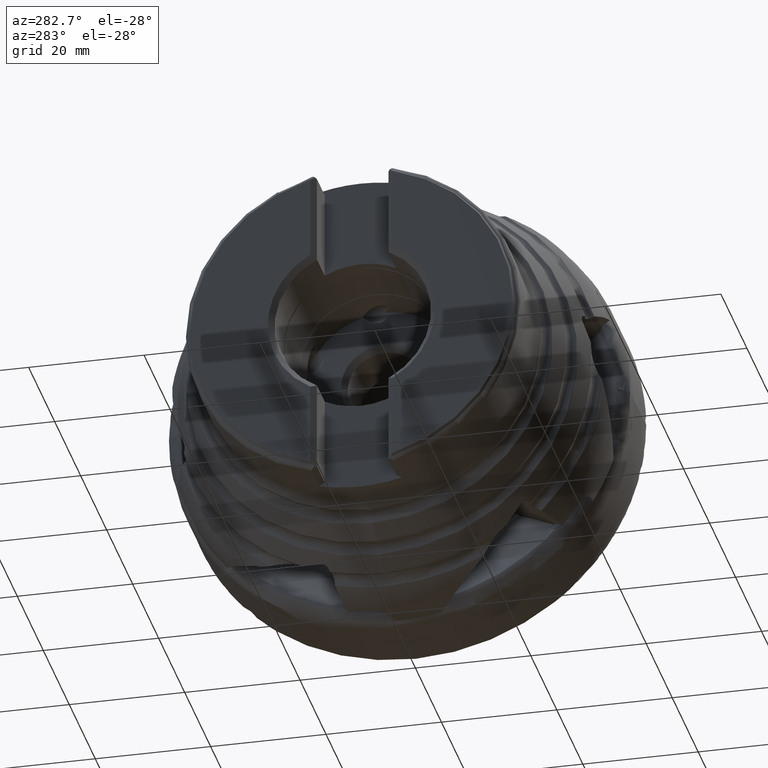
[diagram: clean part render]
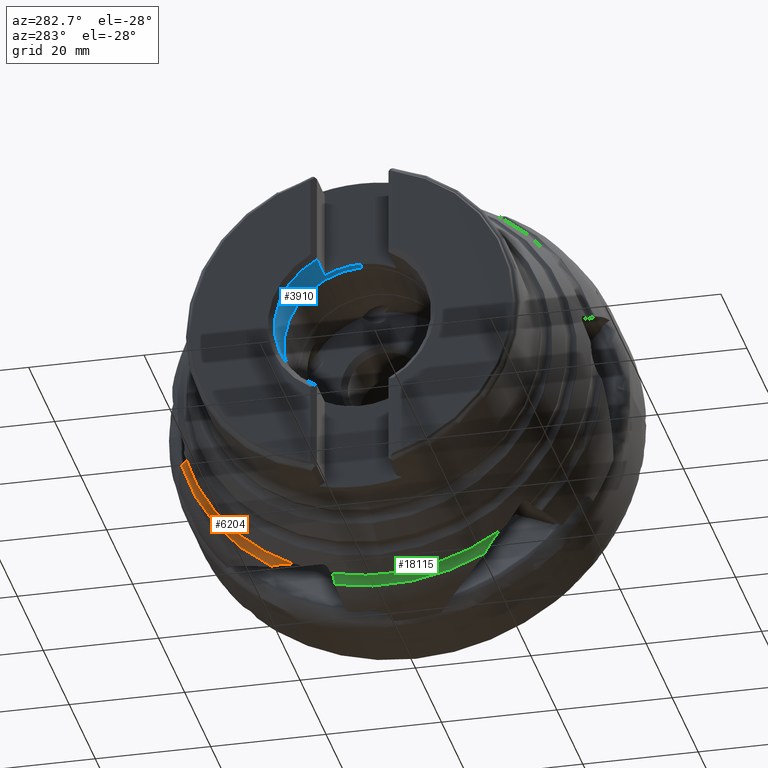
[diagram: same view with three faces highlighted in distinct colors, each labeled with its STEP entity id]
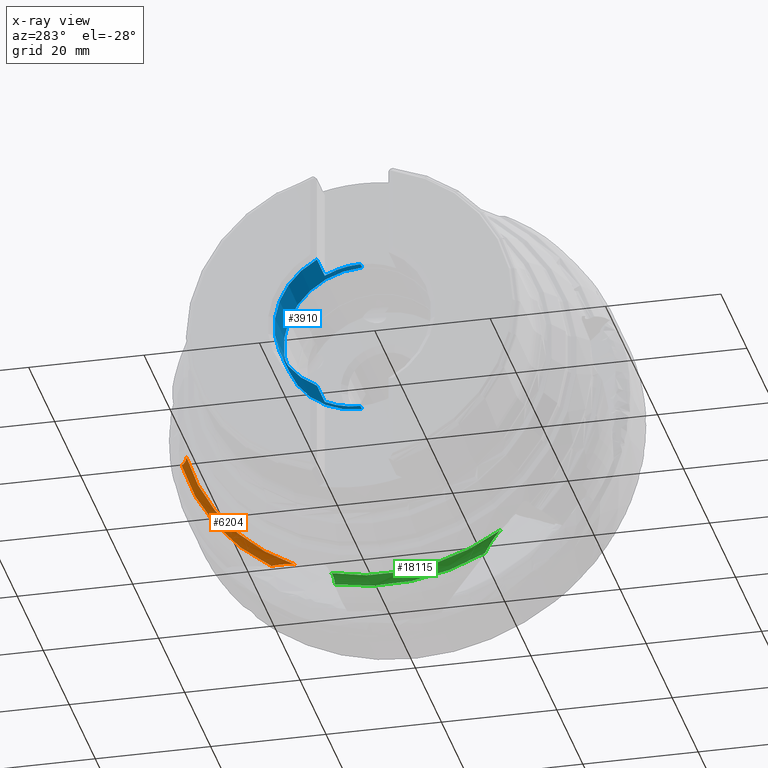
[diagram: x-ray of the same camera — body ghosted, the three highlighted faces saturated]
A machine part, auxiliary view with three faces highlighted in distinct colors.
The next image is the same camera in x-ray (body ghosted, the three faces saturated) — at least one of them is partly hidden behind the body in this view.
Their STEP definitions:

[orange] entity #6204 — the highlighted toroidal blend (fillet) surface has major radius 37.2787 mm and minor (blend) radius 1.5 mm.
#391 = CARTESIAN_POINT ( 'NONE',  ( -21.51366886119036800, 35.68251869820132100, -10.07150043453335900 ) ) ;
#457 = CARTESIAN_POINT ( 'NONE',  ( -21.53809622284390800, 35.52309563300076400, -9.974772789429970000 ) ) ;
#611 = AXIS2_PLACEMENT_3D ( 'NONE', #17384, #6721, #3833 ) ;
#1072 = CARTESIAN_POINT ( 'NONE',  ( -23.00000000000001800, 15.79498028438163700, -32.10346544702017700 ) ) ;
#1289 = ORIENTED_EDGE ( 'NONE', *, *, #18447, .F. ) ;
#1372 = DIRECTION ( 'NONE',  ( -1.000000000000000000, -0.0000000000000000000, -0.0000000000000000000 ) ) ;
#1383 = VERTEX_POINT ( 'NONE', #12033 ) ;
#1770 = TOROIDAL_SURFACE ( 'NONE', #9910, 37.27867934807016300, 1.500000000000000900 ) ;
#3646 = CARTESIAN_POINT ( 'NONE',  ( -22.29613775485444500, 34.70266658829928000, -9.355720155705673900 ) ) ;
#3833 = DIRECTION ( 'NONE',  ( 0.0000000000000000000, 0.0000000000000000000, 1.000000000000000000 ) ) ;
#3869 = CARTESIAN_POINT ( 'NONE',  ( -21.67954234183387600, 19.14590737908504200, -31.14731544686402000 ) ) ;
#3937 = CARTESIAN_POINT ( 'NONE',  ( -21.95183258422435600, 18.20298045011394800, -31.28414528244571400 ) ) ;
#3999 = CARTESIAN_POINT ( 'NONE',  ( -22.66564008822074800, 16.44966681398620900, -31.80743792877047900 ) ) ;
#4630 = B_SPLINE_CURVE_WITH_KNOTS ( 'NONE', 3,
 ( #12886, #13084, #17610, #8455, #3869, #8596, #3937, #14395, #5382, #3999, #19140, #1072 ),
 .UNSPECIFIED., .F., .F.,
 ( 4, 2, 2, 2, 2, 4 ),
 ( 2.356536159494543800E-006, 0.0005949657468441780100, 0.001187574957528861600, 0.002372793378898221200, 0.003558011800267580700, 0.004743230221636940800 ),
 .UNSPECIFIED. ) ;
#5088 = CARTESIAN_POINT ( 'NONE',  ( -21.87352068435427600, 34.97954856389461000, -9.596627818775839800 ) ) ;
#5382 = CARTESIAN_POINT ( 'NONE',  ( -22.35936535405833000, 17.13350953323777000, -31.56416039594680400 ) ) ;
#6204 = ADVANCED_FACE ( 'NONE', ( #19420 ), #1770, .F. ) ;
#6229 = ORIENTED_EDGE ( 'NONE', *, *, #7867, .T. ) ;
#6605 = CIRCLE ( 'NONE', #14671, 37.07664037706706500 ) ;
#6721 = DIRECTION ( 'NONE',  ( -1.000000000000000000, -0.0000000000000000000, -0.0000000000000000000 ) ) ;
#7079 = VERTEX_POINT ( 'NONE', #17651 ) ;
#7867 = EDGE_CURVE ( 'NONE', #7079, #14006, #4630, .T. ) ;
#8455 = CARTESIAN_POINT ( 'NONE',  ( -21.63460922136062000, 19.33804568372522000, -31.13204608563871600 ) ) ;
#8479 = B_SPLINE_CURVE_WITH_KNOTS ( 'NONE', 3,
 ( #391, #457, #16988, #11070, #5088, #14162, #3646, #17129, #18454, #12460 ),
 .UNSPECIFIED., .F., .F.,
 ( 4, 2, 2, 2, 4 ),
 ( 1.523225479245643700E-006, 0.0005576655006382943200, 0.001113807775797342900, 0.001669950050956391600, 0.002226092326115440500 ),
 .UNSPECIFIED. ) ;
#8596 = CARTESIAN_POINT ( 'NONE',  ( -21.83089705983355700, 18.57330535959997100, -31.21367030343509800 ) ) ;
#8641 = EDGE_LOOP ( 'NONE', ( #1289, #18055, #8682, #6229 ) ) ;
#8682 = ORIENTED_EDGE ( 'NONE', *, *, #11154, .T. ) ;
#9397 = EDGE_CURVE ( 'NONE', #9830, #1383, #8479, .T. ) ;
#9830 = VERTEX_POINT ( 'NONE', #12266 ) ;
#9910 = AXIS2_PLACEMENT_3D ( 'NONE', #9988, #13228, #13285 ) ;
#9988 = CARTESIAN_POINT ( 'NONE',  ( -23.00000000000000400, 0.0000000000000000000, 0.0000000000000000000 ) ) ;
#11070 = CARTESIAN_POINT ( 'NONE',  ( -21.76311688592525000, 35.09915776793550900, -9.686857538051514300 ) ) ;
#11154 = EDGE_CURVE ( 'NONE', #9830, #7079, #6605, .T. ) ;
#11911 = DIRECTION ( 'NONE',  ( 0.0000000000000000000, 0.0000000000000000000, 1.000000000000000000 ) ) ;
#12033 = CARTESIAN_POINT ( 'NONE',  ( -23.00000000000000400, 34.58773326200784500, -9.154376204210676000 ) ) ;
#12266 = CARTESIAN_POINT ( 'NONE',  ( -21.51366886119036800, 35.68251869820132100, -10.07150043453335900 ) ) ;
#12460 = CARTESIAN_POINT ( 'NONE',  ( -23.00000000000000400, 34.58773326200784500, -9.154376204210676000 ) ) ;
#12541 = CIRCLE ( 'NONE', #611, 35.77867934807016300 ) ;
#12886 = CARTESIAN_POINT ( 'NONE',  ( -21.51366886119073000, 20.12009711113714200, -31.14255856361859600 ) ) ;
#13084 = CARTESIAN_POINT ( 'NONE',  ( -21.53048751389065200, 19.92150285845964700, -31.12355815489596700 ) ) ;
#13228 = DIRECTION ( 'NONE',  ( -1.000000000000000000, -0.0000000000000000000, -0.0000000000000000000 ) ) ;
#13285 = DIRECTION ( 'NONE',  ( 0.0000000000000000000, 0.0000000000000000000, 1.000000000000000000 ) ) ;
#14006 = VERTEX_POINT ( 'NONE', #16102 ) ;
#14162 = CARTESIAN_POINT ( 'NONE',  ( -22.14308293922401600, 34.77901303240518200, -9.429151749036691400 ) ) ;
#14395 = CARTESIAN_POINT ( 'NONE',  ( -22.21568734456664600, 17.48369708898041700, -31.45907471635407000 ) ) ;
#14671 = AXIS2_PLACEMENT_3D ( 'NONE', #14870, #1372, #11911 ) ;
#14870 = CARTESIAN_POINT ( 'NONE',  ( -21.51366886119569000, 0.0000000000000000000, 0.0000000000000000000 ) ) ;
#16102 = CARTESIAN_POINT ( 'NONE',  ( -23.00000000000001800, 15.79498028438163700, -32.10346544702017700 ) ) ;
#16988 = CARTESIAN_POINT ( 'NONE',  ( -21.59337883674400900, 35.37432262198805700, -9.878276515395555200 ) ) ;
#17129 = CARTESIAN_POINT ( 'NONE',  ( -22.63597857041773800, 34.60174986390602900, -9.232280962436146200 ) ) ;
#17384 = CARTESIAN_POINT ( 'NONE',  ( -23.00000000000000400, 0.0000000000000000000, 0.0000000000000000000 ) ) ;
#17610 = CARTESIAN_POINT ( 'NONE',  ( -21.56021650805164600, 19.72587466975030400, -31.12034187757976200 ) ) ;
#17651 = CARTESIAN_POINT ( 'NONE',  ( -21.51366886119073000, 20.12009711113714200, -31.14255856361859600 ) ) ;
#18055 = ORIENTED_EDGE ( 'NONE', *, *, #9397, .F. ) ;
#18447 = EDGE_CURVE ( 'NONE', #1383, #14006, #12541, .T. ) ;
#18454 = CARTESIAN_POINT ( 'NONE',  ( -22.81521970404319400, 34.57959727690192200, -9.185116177791618600 ) ) ;
#19140 = CARTESIAN_POINT ( 'NONE',  ( -22.82910811290597400, 16.11432054398665400, -31.94634929042347700 ) ) ;
#19420 = FACE_OUTER_BOUND ( 'NONE', #8641, .T. ) ;

[blue] entity #3910 — the highlighted cylindrical surface (partial cylindrical patch) has radius 13.575 mm, axis along (1, -0, -0).
#27 = EDGE_CURVE ( 'NONE', #1500, #11069, #5865, .T. ) ;
#115 = CARTESIAN_POINT ( 'NONE',  ( -42.25000000000000000, 6.199999999999994000, 12.07644918839970500 ) ) ;
#539 = ORIENTED_EDGE ( 'NONE', *, *, #3185, .T. ) ;
#550 = CARTESIAN_POINT ( 'NONE',  ( 0.0000000000000000000, 0.0000000000000000000, -13.57499999999999400 ) ) ;
#597 = ORIENTED_EDGE ( 'NONE', *, *, #19063, .T. ) ;
#710 = VERTEX_POINT ( 'NONE', #17592 ) ;
#849 = LINE ( 'NONE', #16225, #5352 ) ;
#1050 = EDGE_CURVE ( 'NONE', #10140, #11069, #10542, .T. ) ;
#1500 = VERTEX_POINT ( 'NONE', #115 ) ;
#2522 = AXIS2_PLACEMENT_3D ( 'NONE', #13431, #8950, #19366 ) ;
#2614 = CARTESIAN_POINT ( 'NONE',  ( 0.0000000000000000000, 1.662458029842531100E-015, 13.57499999999999400 ) ) ;
#2800 = VECTOR ( 'NONE', #12892, 1000.000000000000000 ) ;
#2879 = AXIS2_PLACEMENT_3D ( 'NONE', #7349, #13278, #10235 ) ;
#3185 = EDGE_CURVE ( 'NONE', #17289, #1500, #9066, .T. ) ;
#3679 = CARTESIAN_POINT ( 'NONE',  ( -42.25000000000000000, 0.0000000000000000000, 0.0000000000000000000 ) ) ;
#3910 = ADVANCED_FACE ( 'NONE', ( #16843 ), #8358, .F. ) ;
#4602 = DIRECTION ( 'NONE',  ( 1.000000000000000000, -0.0000000000000000000, -0.0000000000000000000 ) ) ;
#4843 = ORIENTED_EDGE ( 'NONE', *, *, #6199, .F. ) ;
#4995 = DIRECTION ( 'NONE',  ( 0.0000000000000000000, 0.0000000000000000000, -1.000000000000000000 ) ) ;
#5073 = EDGE_CURVE ( 'NONE', #13757, #710, #5317, .T. ) ;
#5317 = LINE ( 'NONE', #550, #18248 ) ;
#5352 = VECTOR ( 'NONE', #19255, 1000.000000000000000 ) ;
#5462 = VERTEX_POINT ( 'NONE', #15288 ) ;
#5532 = CARTESIAN_POINT ( 'NONE',  ( -48.25000000000000000, 6.199999999999994000, 12.07644918839969400 ) ) ;
#5865 = LINE ( 'NONE', #13088, #2800 ) ;
#6101 = ORIENTED_EDGE ( 'NONE', *, *, #1050, .F. ) ;
#6199 = EDGE_CURVE ( 'NONE', #17289, #5462, #13772, .T. ) ;
#7349 = CARTESIAN_POINT ( 'NONE',  ( 0.0000000000000000000, 0.0000000000000000000, 0.0000000000000000000 ) ) ;
#7899 = AXIS2_PLACEMENT_3D ( 'NONE', #3679, #8201, #4995 ) ;
#8201 = DIRECTION ( 'NONE',  ( -1.000000000000000000, -0.0000000000000000000, -0.0000000000000000000 ) ) ;
#8358 = CYLINDRICAL_SURFACE ( 'NONE', #2879, 13.57499999999999400 ) ;
#8678 = EDGE_LOOP ( 'NONE', ( #4843, #539, #11312, #6101, #17159, #12552, #16462, #597 ) ) ;
#8950 = DIRECTION ( 'NONE',  ( -1.000000000000000000, -0.0000000000000000000, -0.0000000000000000000 ) ) ;
#9066 = CIRCLE ( 'NONE', #7899, 13.57499999999999400 ) ;
#9132 = CARTESIAN_POINT ( 'NONE',  ( -48.25000000000000000, 0.0000000000000000000, 0.0000000000000000000 ) ) ;
#9774 = VECTOR ( 'NONE', #19027, 1000.000000000000000 ) ;
#10140 = VERTEX_POINT ( 'NONE', #18236 ) ;
#10235 = DIRECTION ( 'NONE',  ( 0.0000000000000000000, 0.0000000000000000000, -1.000000000000000000 ) ) ;
#10542 = CIRCLE ( 'NONE', #16362, 13.57499999999999400 ) ;
#10791 = CARTESIAN_POINT ( 'NONE',  ( -41.00000000000000000, 0.0000000000000000000, 0.0000000000000000000 ) ) ;
#10996 = DIRECTION ( 'NONE',  ( 0.0000000000000000000, 0.0000000000000000000, -1.000000000000000000 ) ) ;
#11069 = VERTEX_POINT ( 'NONE', #5532 ) ;
#11166 = DIRECTION ( 'NONE',  ( 1.000000000000000000, -0.0000000000000000000, -0.0000000000000000000 ) ) ;
#11312 = ORIENTED_EDGE ( 'NONE', *, *, #27, .T. ) ;
#11512 = CARTESIAN_POINT ( 'NONE',  ( -42.25000000000000000, 1.662458029842531100E-015, 13.57499999999999400 ) ) ;
#12238 = VERTEX_POINT ( 'NONE', #13315 ) ;
#12410 = CARTESIAN_POINT ( 'NONE',  ( -42.25000000000000000, 0.0000000000000000000, -13.57499999999999400 ) ) ;
#12552 = ORIENTED_EDGE ( 'NONE', *, *, #19322, .T. ) ;
#12892 = DIRECTION ( 'NONE',  ( -1.000000000000000000, 0.0000000000000000000, 0.0000000000000000000 ) ) ;
#13088 = CARTESIAN_POINT ( 'NONE',  ( 0.0000000000000000000, 6.199999999999994000, 12.07644918839970500 ) ) ;
#13278 = DIRECTION ( 'NONE',  ( 1.000000000000000000, -0.0000000000000000000, -0.0000000000000000000 ) ) ;
#13315 = CARTESIAN_POINT ( 'NONE',  ( -42.25000000000000000, 6.199999999999994000, -12.07644918839970500 ) ) ;
#13431 = CARTESIAN_POINT ( 'NONE',  ( -42.25000000000000000, 0.0000000000000000000, 0.0000000000000000000 ) ) ;
#13757 = VERTEX_POINT ( 'NONE', #12410 ) ;
#13772 = LINE ( 'NONE', #2614, #9774 ) ;
#14014 = EDGE_CURVE ( 'NONE', #10140, #12238, #849, .T. ) ;
#15288 = CARTESIAN_POINT ( 'NONE',  ( -41.00000000000000000, 1.662458029842531100E-015, 13.57499999999999400 ) ) ;
#15545 = DIRECTION ( 'NONE',  ( 1.000000000000000000, -0.0000000000000000000, -0.0000000000000000000 ) ) ;
#15827 = CIRCLE ( 'NONE', #2522, 13.57499999999999400 ) ;
#16225 = CARTESIAN_POINT ( 'NONE',  ( 0.0000000000000000000, 6.199999999999994000, -12.07644918839970500 ) ) ;
#16362 = AXIS2_PLACEMENT_3D ( 'NONE', #9132, #4602, #18151 ) ;
#16462 = ORIENTED_EDGE ( 'NONE', *, *, #5073, .T. ) ;
#16843 = FACE_OUTER_BOUND ( 'NONE', #8678, .T. ) ;
#17159 = ORIENTED_EDGE ( 'NONE', *, *, #14014, .T. ) ;
#17289 = VERTEX_POINT ( 'NONE', #11512 ) ;
#17592 = CARTESIAN_POINT ( 'NONE',  ( -41.00000000000000000, 0.0000000000000000000, -13.57499999999999400 ) ) ;
#18151 = DIRECTION ( 'NONE',  ( 0.0000000000000000000, 0.0000000000000000000, -1.000000000000000000 ) ) ;
#18236 = CARTESIAN_POINT ( 'NONE',  ( -48.25000000000000000, 6.199999999999994000, -12.07644918839970800 ) ) ;
#18248 = VECTOR ( 'NONE', #11166, 1000.000000000000000 ) ;
#18420 = AXIS2_PLACEMENT_3D ( 'NONE', #10791, #15545, #10996 ) ;
#19027 = DIRECTION ( 'NONE',  ( 1.000000000000000000, -0.0000000000000000000, -0.0000000000000000000 ) ) ;
#19063 = EDGE_CURVE ( 'NONE', #710, #5462, #19133, .T. ) ;
#19133 = CIRCLE ( 'NONE', #18420, 13.57499999999999400 ) ;
#19255 = DIRECTION ( 'NONE',  ( 1.000000000000000000, -0.0000000000000000000, -0.0000000000000000000 ) ) ;
#19322 = EDGE_CURVE ( 'NONE', #12238, #13757, #15827, .T. ) ;
#19366 = DIRECTION ( 'NONE',  ( 0.0000000000000000000, -8.881784197001252300E-016, -1.000000000000000000 ) ) ;

[green] entity #18115 — the highlighted toroidal blend (fillet) surface has major radius 37.2787 mm and minor (blend) radius 1.5 mm.
#14 = CARTESIAN_POINT ( 'NONE',  ( -23.00000000000000400, 9.365944282357634900, -34.53104376632416700 ) ) ;
#612 = CARTESIAN_POINT ( 'NONE',  ( -23.00000000000000000, -19.90492648444422500, -29.73058690205919400 ) ) ;
#811 = CARTESIAN_POINT ( 'NONE',  ( -21.63460922136061300, -17.29211994008804300, -32.31326186446962400 ) ) ;
#1091 = CARTESIAN_POINT ( 'NONE',  ( -21.87352068435433900, 9.178850800222912600, -35.09149157863210900 ) ) ;
#1719 = EDGE_CURVE ( 'NONE', #6395, #16607, #5826, .T. ) ;
#2305 = CARTESIAN_POINT ( 'NONE',  ( -21.51366886119073000, -16.91019829936937000, -32.99579450666414700 ) ) ;
#2353 = CARTESIAN_POINT ( 'NONE',  ( -22.14308293922396900, 9.223621565398252300, -34.83408467913135800 ) ) ;
#3495 = B_SPLINE_CURVE_WITH_KNOTS ( 'NONE', 3,
 ( #15919, #14186, #12880, #811, #9642, #17350, #17216, #5439, #9900, #6884, #17148, #612 ),
 .UNSPECIFIED., .F., .F.,
 ( 4, 2, 2, 2, 2, 4 ),
 ( 2.356536158679676100E-006, 0.0005949657468433554200, 0.001187574957528031300, 0.002372793378897379400, 0.003558011800266727700, 0.004743230221636075100 ),
 .UNSPECIFIED. ) ;
#3852 = TOROIDAL_SURFACE ( 'NONE', #9703, 37.27867934807016300, 1.500000000000000900 ) ;
#3892 = CARTESIAN_POINT ( 'NONE',  ( -22.63597857041766300, 9.305485083607782900, -34.58213487875549000 ) ) ;
#4563 = EDGE_LOOP ( 'NONE', ( #13532, #19476, #16759, #16911 ) ) ;
#5307 = CARTESIAN_POINT ( 'NONE',  ( -23.00000000000000000, -19.90492648444422500, -29.73058690205919400 ) ) ;
#5401 = CARTESIAN_POINT ( 'NONE',  ( -22.81521970404326900, 9.335254691771931200, -34.53936778332809600 ) ) ;
#5439 = CARTESIAN_POINT ( 'NONE',  ( -22.21568734456664300, -18.50250933942480100, -30.87086318930633100 ) ) ;
#5826 = CIRCLE ( 'NONE', #9542, 35.77867934807016300 ) ;
#5988 = DIRECTION ( 'NONE',  ( 0.0000000000000000000, 0.0000000000000000000, 1.000000000000000000 ) ) ;
#6168 = EDGE_CURVE ( 'NONE', #12458, #6395, #7637, .T. ) ;
#6395 = VERTEX_POINT ( 'NONE', #14 ) ;
#6884 = CARTESIAN_POINT ( 'NONE',  ( -22.66564008822073400, -19.32121586861845200, -30.14954830908738600 ) ) ;
#6912 = CARTESIAN_POINT ( 'NONE',  ( -21.76311688592521800, 9.160514173174267000, -35.24019104749589100 ) ) ;
#7012 = VERTEX_POINT ( 'NONE', #2305 ) ;
#7033 = CARTESIAN_POINT ( 'NONE',  ( -21.51366886119036800, 9.119084118568677500, -35.93771788092227800 ) ) ;
#7254 = CARTESIAN_POINT ( 'NONE',  ( -23.00000000000000400, 0.0000000000000000000, 0.0000000000000000000 ) ) ;
#7637 = B_SPLINE_CURVE_WITH_KNOTS ( 'NONE', 3,
 ( #7033, #14412, #8477, #6912, #1091, #2353, #12907, #3892, #5401, #17508 ),
 .UNSPECIFIED., .F., .F.,
 ( 4, 2, 2, 2, 4 ),
 ( 1.523225483135747300E-006, 0.0005576655006421862800, 0.001113807775801236700, 0.001669950050960287300, 0.002226092326119338000 ),
 .UNSPECIFIED. ) ;
#8477 = CARTESIAN_POINT ( 'NONE',  ( -21.59337883674404800, 9.132322903054184600, -35.57420029000593300 ) ) ;
#9542 = AXIS2_PLACEMENT_3D ( 'NONE', #14739, #19488, #5988 ) ;
#9642 = CARTESIAN_POINT ( 'NONE',  ( -21.67954234183388400, -17.40141274712880200, -32.15449989222378200 ) ) ;
#9703 = AXIS2_PLACEMENT_3D ( 'NONE', #7254, #11727, #17660 ) ;
#9900 = CARTESIAN_POINT ( 'NONE',  ( -22.35936535405832600, -18.76860998539736900, -30.62013470974039800 ) ) ;
#10015 = CIRCLE ( 'NONE', #12074, 37.07664037706706500 ) ;
#11009 = DIRECTION ( 'NONE',  ( -1.000000000000000000, -0.0000000000000000000, -0.0000000000000000000 ) ) ;
#11242 = CARTESIAN_POINT ( 'NONE',  ( -21.51366886119036800, 9.119084118568677500, -35.93771788092227800 ) ) ;
#11369 = FACE_OUTER_BOUND ( 'NONE', #4563, .T. ) ;
#11727 = DIRECTION ( 'NONE',  ( -1.000000000000000000, -0.0000000000000000000, -0.0000000000000000000 ) ) ;
#12074 = AXIS2_PLACEMENT_3D ( 'NONE', #18397, #11009, #15564 ) ;
#12458 = VERTEX_POINT ( 'NONE', #11242 ) ;
#12880 = CARTESIAN_POINT ( 'NONE',  ( -21.56021650805164600, -17.08806930556527300, -32.64327951466182000 ) ) ;
#12907 = CARTESIAN_POINT ( 'NONE',  ( -22.29613775485452700, 9.249041968610354700, -34.73125092238144900 ) ) ;
#12951 = EDGE_CURVE ( 'NONE', #7012, #16607, #3495, .T. ) ;
#13532 = ORIENTED_EDGE ( 'NONE', *, *, #1719, .F. ) ;
#14186 = CARTESIAN_POINT ( 'NONE',  ( -21.53048751389066600, -16.99304058907203800, -32.81430663443853000 ) ) ;
#14412 = CARTESIAN_POINT ( 'NONE',  ( -21.53809622284389700, 9.123141183876175100, -35.75128963395779600 ) ) ;
#14739 = CARTESIAN_POINT ( 'NONE',  ( -23.00000000000000400, 0.0000000000000000000, 0.0000000000000000000 ) ) ;
#14776 = EDGE_CURVE ( 'NONE', #12458, #7012, #10015, .T. ) ;
#15564 = DIRECTION ( 'NONE',  ( 0.0000000000000000000, 0.0000000000000000000, 1.000000000000000000 ) ) ;
#15919 = CARTESIAN_POINT ( 'NONE',  ( -21.51366886119073000, -16.91019829936937000, -32.99579450666414700 ) ) ;
#16607 = VERTEX_POINT ( 'NONE', #5307 ) ;
#16759 = ORIENTED_EDGE ( 'NONE', *, *, #14776, .T. ) ;
#16911 = ORIENTED_EDGE ( 'NONE', *, *, #12951, .T. ) ;
#17148 = CARTESIAN_POINT ( 'NONE',  ( -22.82910811290594600, -19.60918977168398700, -29.92858560102991900 ) ) ;
#17216 = CARTESIAN_POINT ( 'NONE',  ( -21.95183258422435200, -17.99137432522375200, -31.40631613561323800 ) ) ;
#17350 = CARTESIAN_POINT ( 'NONE',  ( -21.83089705983355700, -17.74517874832635700, -31.69178942537702400 ) ) ;
#17508 = CARTESIAN_POINT ( 'NONE',  ( -23.00000000000000400, 9.365944282357634900, -34.53104376632416700 ) ) ;
#17660 = DIRECTION ( 'NONE',  ( 0.0000000000000000000, 0.0000000000000000000, 1.000000000000000000 ) ) ;
#18115 = ADVANCED_FACE ( 'NONE', ( #11369 ), #3852, .F. ) ;
#18397 = CARTESIAN_POINT ( 'NONE',  ( -21.51366886119569000, 0.0000000000000000000, 0.0000000000000000000 ) ) ;
#19476 = ORIENTED_EDGE ( 'NONE', *, *, #6168, .F. ) ;
#19488 = DIRECTION ( 'NONE',  ( -1.000000000000000000, -0.0000000000000000000, -0.0000000000000000000 ) ) ;